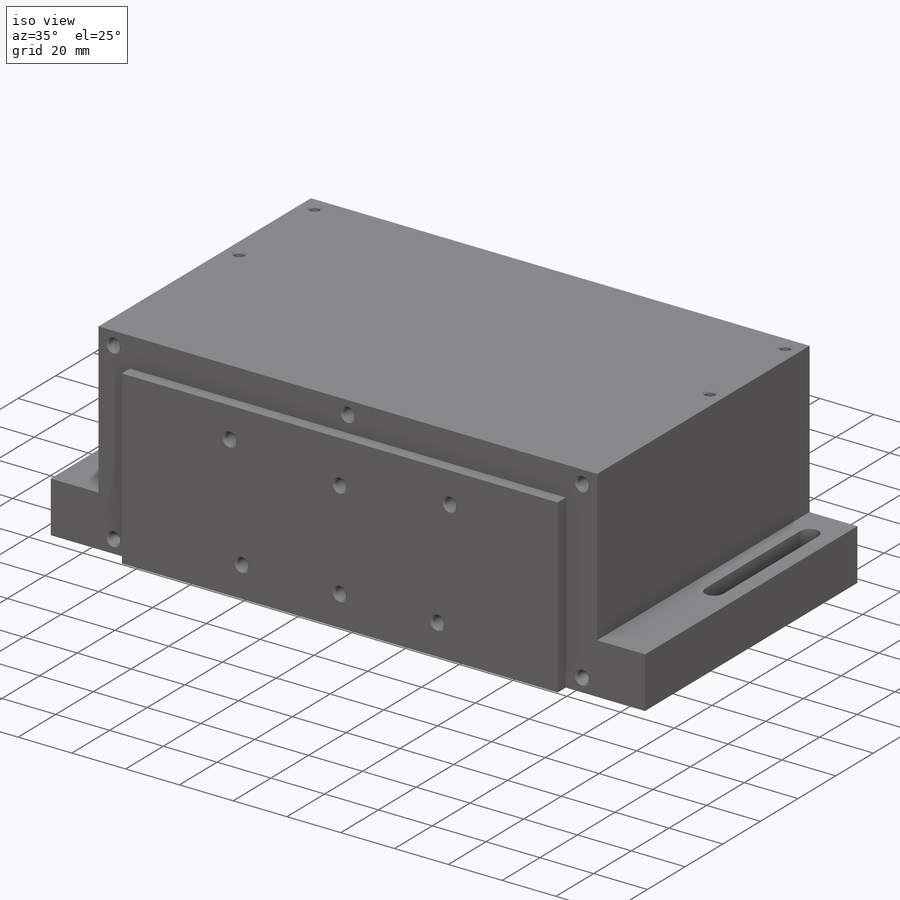
[diagram: iso view]
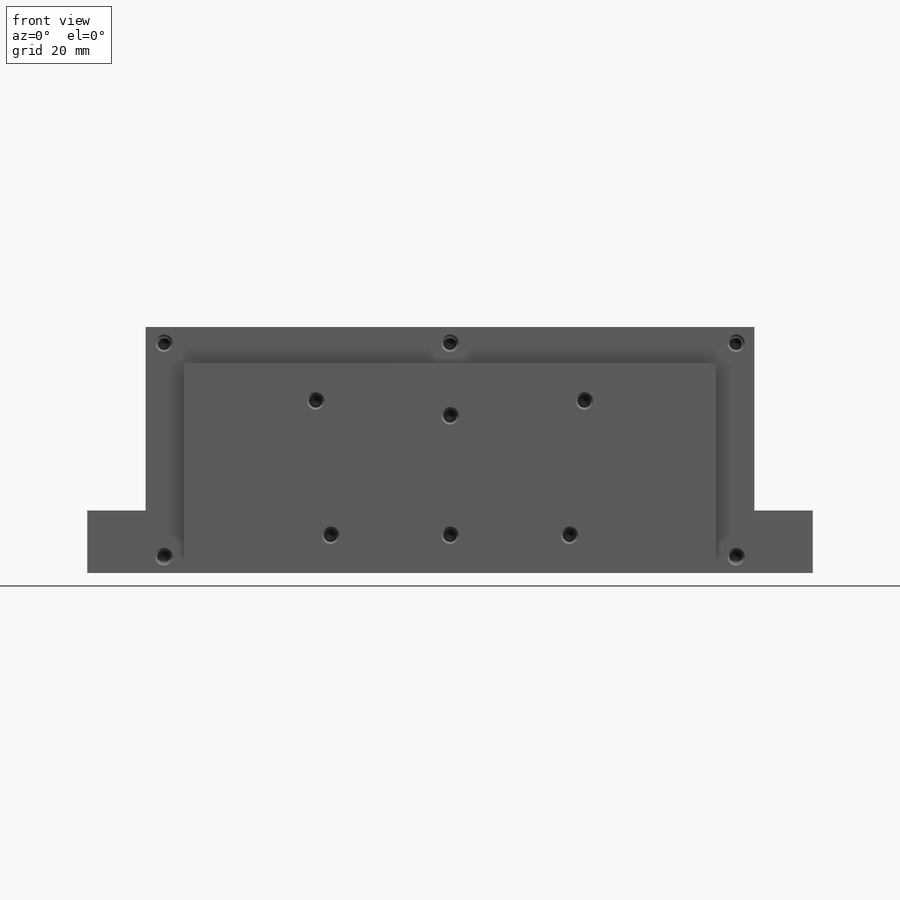
[diagram: front view]
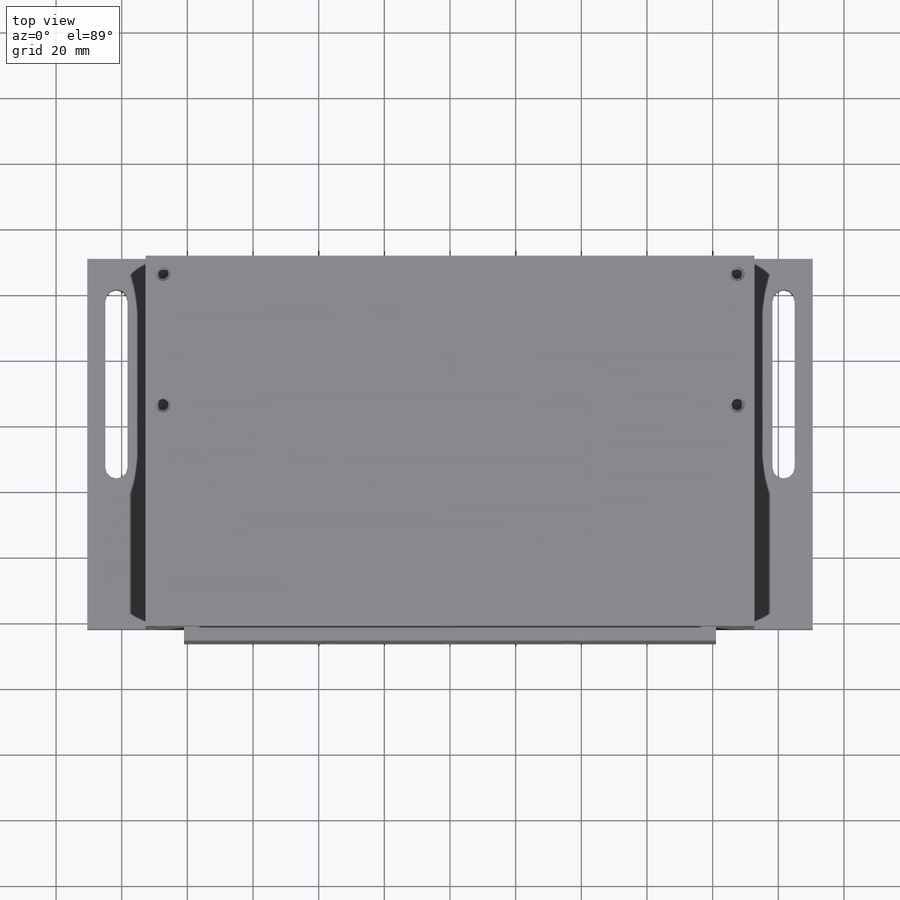
[diagram: top view]
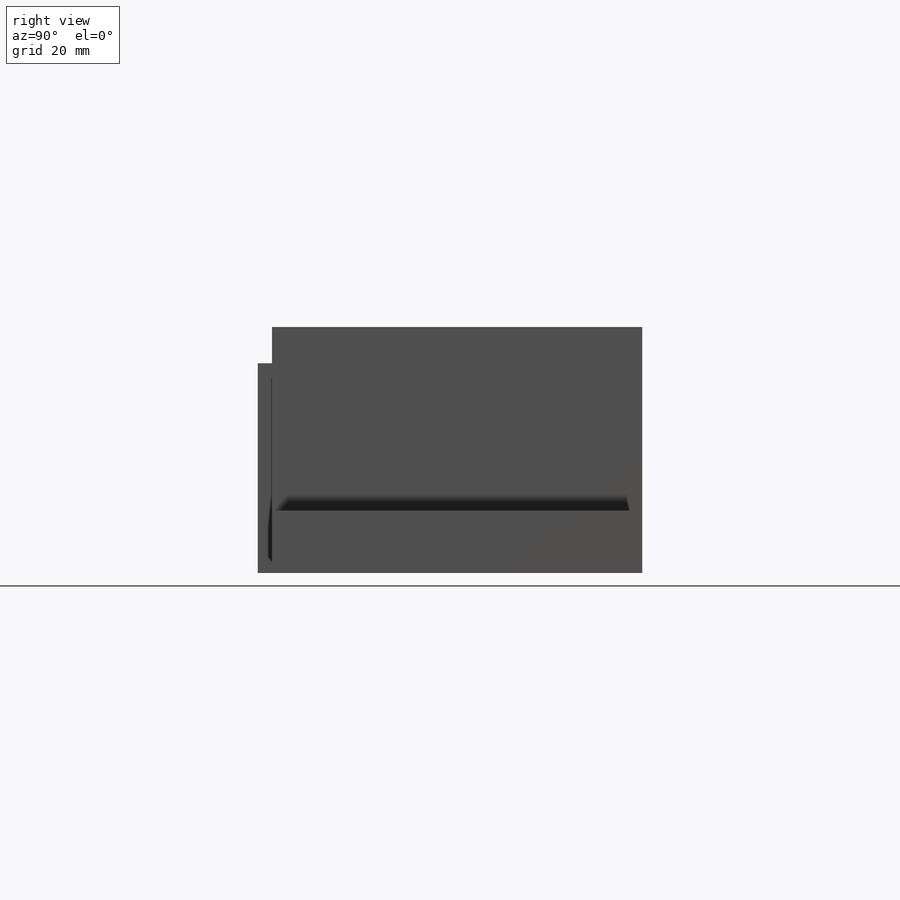
[diagram: right view]
SOLIDWORKS PART (.sldprt)
format: sldprt  version: not decoded by parser v0  size: 494,592 bytes
history: native  units: mm
features: sketch x13, hole x4, extrude x3, cut_extrude x2, material x1 + 1 further entry (+10 scaffold rows collapsed)
feature tree (34):
  scaffold x10  (default folders/planes/origin — collapsed)
  material  "6061-T6 Al"
  "Origin"  ID=392984584
  sketch  "Sketch1"  dims[D1=220.98mm D2=170.18mm D3=2.54mm D4=185.42mm D5=19.05mm D6=74.93mm]
  extrude  "Boss-Extrude1"  Depth=50.8mm
  hole  "#6-32 Tapped Hole1"  Diameter=2.7051mm Depth=13.6144mm
  sketch  "Sketch4"  dims[D1=175.006mm D2=40.005mm]
  sketch  "Sketch3"  dims[hole-wizard template sketch: 26 standard entries collapsed; hole parameters kept: c8.Tap Drill Dia.=2.7051mm c8.Tap Drill Depth=13.6144mm c8.Thread Major Dia.=3.5052mm c8.Thread Depth=9.652mm c8.Near C'Sink Dia.=4.7752mm c8.D6=~4.399409mm c8.Near C'Sink Angle=90.0deg c8.D7=~14.816244mm c8.Drill Angle=118.0deg]
  sketch  "Sketch5"  dims[D1=172.72mm D2=3.302mm]
  extrude  "Boss-Extrude2"  Depth=61.976mm
  sketch  "Sketch16"  dims[c1.D5=3.3782mm c1.D1=25.4mm c1.D2=6.7564mm c1.D3=25.4mm c1.D4=15.24mm c2.D5=15.24mm c2.D6=~15.609927mm c2.D4=~16.670529mm c3.D5=~16.670529mm c3.D6=~15.609927mm c3.D4=50.8mm c4.D5=203.2mm c4.D1=12.7mm c4.D3=50.8mm c4.D6=~50.912201mm c4.D4=~51.247331mm c5.D3=~51.247331mm c5.D6=~50.912201mm c5.D4=50.8mm]
  cut_extrude  "Cut-Extrude2"  [1 undecoded]
  hole  "#8-32 Tapped Hole1"  Diameter=3.4544mm Depth=16.6624mm
  sketch  "Sketch12"  dims[D1=4.953mm D2=5.588mm D3=65.024mm D4=174.244mm D5=4.953mm D6=2.54mm]
  sketch  "Sketch11"  dims[hole-wizard template sketch: 26 standard entries collapsed; hole parameters kept: c8.Tap Drill Dia.=3.4544mm c8.Tap Drill Depth=16.6624mm c8.Thread Major Dia.=4.1656mm c8.Thread Depth=12.7mm c8.Near C'Sink Dia.=5.4356mm c8.D6=~4.399409mm c8.Near C'Sink Angle=90.0deg c8.D7=~14.816244mm c8.Drill Angle=118.0deg]
  sketch  "Sketch13"  dims[D1=6.096mm D2=6.096mm]
  extrude  "Boss-Extrude4"  Depth=4.318mm
  hole  "#8-32 Tapped Hole2"  Diameter=3.4544mm Depth=16.6624mm
  sketch  "Sketch8"  dims[c1.D1=38.1mm c1.D2=63.5mm c2.D1=40.9194mm c2.D2=139.7mm c2.D3=~144.802279mm c3.D2=81.8388mm c3.D3=40.132mm c3.D4=11.4808mm c3.D5=36.3728mm c3.D1=40.9194mm c3.D6=4.5466mm c3.D7=77.2922mm c3.D8=40.1066mm c4.D3=4.5466mm c4.D6=77.2922mm c4.D7=40.9194mm]
  sketch  "Sketch7"  dims[hole-wizard template sketch: 26 standard entries collapsed; hole parameters kept: c8.Tap Drill Dia.=3.4544mm c8.Tap Drill Depth=16.6624mm c8.Thread Major Dia.=4.1656mm c8.Thread Depth=12.7mm c8.Near C'Sink Dia.=5.4356mm c8.D6=~4.399409mm c8.Near C'Sink Angle=90.0deg c8.D7=~14.816244mm c8.Drill Angle=118.0deg]
  sketch  "Sketch17"  dims[D2=9.525mm D1=3.048mm]
  cut_extrude  "Cut-Extrude3"  [1 undecoded]
  hole  "1/4-20 Tapped Hole1"  Diameter=5.1054mm Depth=19.05mm
  sketch  "Sketch19"  dims[D1=38.1mm D2=50.8mm]
  sketch  "Sketch18"  dims[hole-wizard template sketch: 27 standard entries collapsed; hole parameters kept: c8.Tap Drill Depth=19.05mm c8.Thread Major Dia.=6.35mm c8.Thread Depth=12.7mm c8.Near C'Sink Dia.=7.874mm c8.D6=~4.399409mm c8.Near C'Sink Angle=90.0deg c8.D7=~14.816244mm c8.Drill Angle=118.0deg]
decode coverage: 20 of 22 modeling features carry decoded parameters; 1 rows unclassified (native names shown)
note: ~ marks probable driven/reference dimensions
note: 2 parameter values undecoded
summary: Diameter pulled from absorbed wizard sketch
note: suppression state not decoded; provenance and decode notes live in map.json
